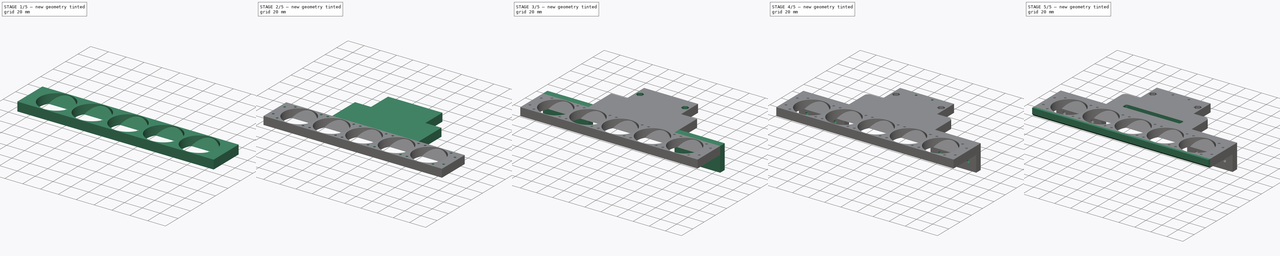
[diagram: build sequence overview — one tinted view per stage of 5, left to right]
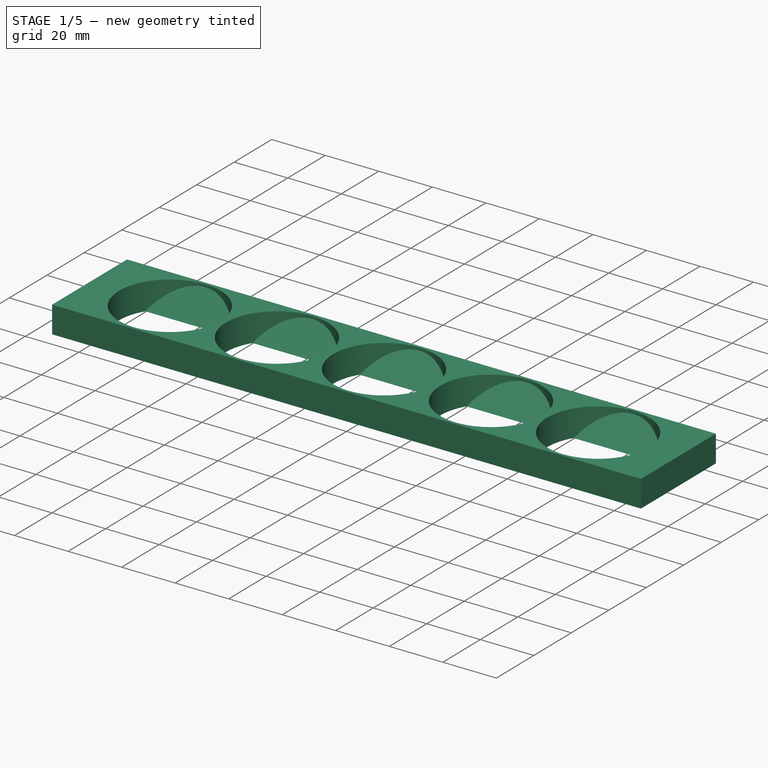
[diagram: stage 1 of 5 — iso view after this stage's code; geometry added in this stage tinted green]
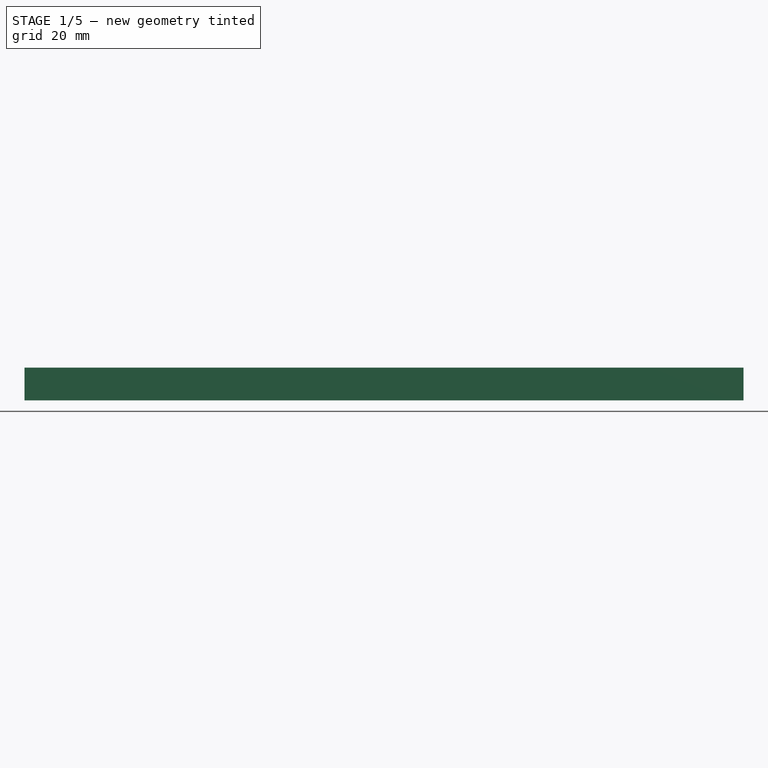
[diagram: stage 1 of 5 — front view after this stage's code; geometry added in this stage tinted green]
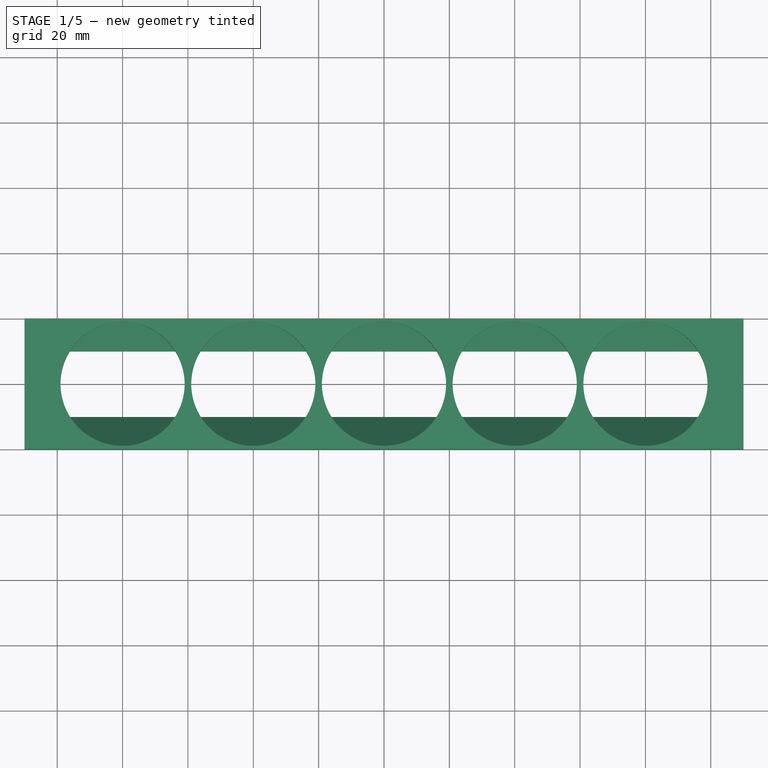
[diagram: stage 1 of 5 — top view after this stage's code; geometry added in this stage tinted green]
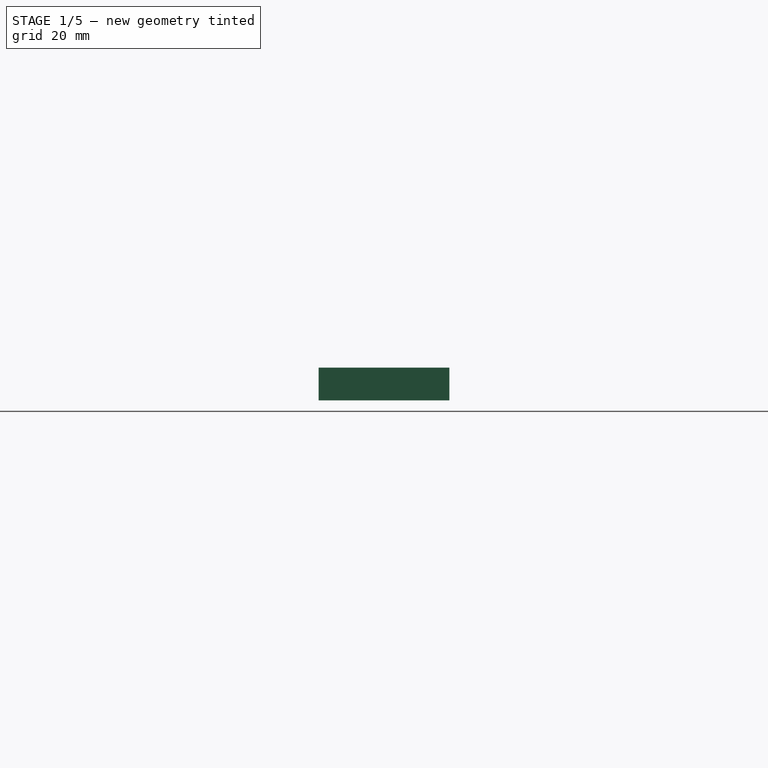
[diagram: stage 1 of 5 — right view after this stage's code; geometry added in this stage tinted green]
FCSTD DOCUMENT  (FreeCAD 0.19R19180 (Git))
Label: base
License: All rights reserved
LicenseURL: http://en.wikipedia.org/wiki/All_rights_reserved
objects: Sketcher::SketchObject×17, PartDesign::Pocket×10, PartDesign::Pad×7, PartDesign::Fillet×2, App::MeasureDistance×2, PartDesign::Chamfer×1, PartDesign::Body×1
note: 55 computed .brp shape members not serialized (recipe doc carries the construction recipe); baked Part::Feature solids carry a one-line shape summary decoded from their .brp

FEATURE [Sketcher::SketchObject] Sketch
  MapMode = 5
  Support = -> [XY_Plane]
  sketch-geometry (4):
    g0: LineSegment StartX=-110 StartY=20 StartZ=0 EndX=110 EndY=20 EndZ=0
    g1: LineSegment StartX=110 StartY=20 StartZ=0 EndX=110 EndY=-20 EndZ=0
    g2: LineSegment StartX=110 StartY=-20 StartZ=0 EndX=-110 EndY=-20 EndZ=0
    g3: LineSegment StartX=-110 StartY=-20 StartZ=0 EndX=-110 EndY=20 EndZ=0
  constraints (12):
    c: Coincident(g0,g1)
    c: Coincident(g1,g2)
    c: Coincident(g2,g3)
    c: Coincident(g3,g0)
    c: Horizontal(g0)
    c: Horizontal(g2)
    c: Vertical(g1)
    c: Vertical(g3)
    c: DistanceX(g0,g0) = 220
    c: DistanceY(g3,g3) = 40
    c: DistanceY(g-1,g0) = 20
    c: DistanceX(g0,g-1) = 110
FEATURE [PartDesign::Pad] Pad
  Length = 10
  Length2 = 100
  Profile = -> Sketch
  Type = 0
FEATURE [Sketcher::SketchObject] Sketch001
  ExternalGeometry = -> [Pad]
  MapMode = 5
  Placement = pos=(0,0,10) rot=(0,0,1;0rad)
  Support = -> [Pad]
  sketch-geometry (5):
    g0: Circle CenterX=-80 CenterY=0 CenterZ=0 NormalX=0 NormalY=0 NormalZ=1 AngleXU=0 Radius=19
    g1: Circle CenterX=-40 CenterY=0 CenterZ=0 NormalX=0 NormalY=0 NormalZ=1 AngleXU=0 Radius=19
    g2: Circle CenterX=0 CenterY=0 CenterZ=0 NormalX=0 NormalY=0 NormalZ=1 AngleXU=0 Radius=19
    g3: Circle CenterX=40 CenterY=0 CenterZ=0 NormalX=0 NormalY=0 NormalZ=1 AngleXU=0 Radius=19
    g4: Circle CenterX=80 CenterY=0 CenterZ=0 NormalX=0 NormalY=0 NormalZ=1 AngleXU=0 Radius=19
  constraints (14):
    c: PointOnObject(g0,g-1)
    c: Coincident(g2,g-1)
    c: PointOnObject(g4,g-1)
    c: Diameter(g4) = 38
    c: Equal(g4,g3)
    c: Equal(g4,g2)
    c: Equal(g4,g1)
    c: Equal(g4,g0)
    c: DistanceX(g-3,g0) = 30
    c: DistanceY(g1,g-1) = 0
    c: DistanceY(g-1,g3) = 0
    c: DistanceX(g0,g1) = 40
    c: DistanceX(g2,g3) = 40
    c: DistanceX(g3,g4) = 40
FEATURE [PartDesign::Pocket] Pocket
  BaseFeature = -> Pad
  Length = 10
  Length2 = 100
  Profile = -> Sketch001
  Type = 0
FEATURE [Sketcher::SketchObject] Sketch002
  ExternalGeometry = -> [Pocket]
  MapMode = 5
  Placement = pos=(110,0,0) rot=(0.57735,0.57735,0.57735;2.0944rad)
  Support = -> [Pocket]
  sketch-geometry (3):
    g0: LineSegment StartX=-10 StartY=0 StartZ=0 EndX=-20 EndY=0 EndZ=0
    g1: LineSegment StartX=-20 StartY=0 StartZ=0 EndX=-20 EndY=10 EndZ=0
    g2: LineSegment StartX=-10 StartY=0 StartZ=0 EndX=-20 EndY=10 EndZ=0
  constraints (7):
    c: Coincident(g0,g1)
    c: Horizontal(g0)
    c: Vertical(g1)
    c: Coincident(g0,g-4)
    c: DistanceY(g1,g-3) = 0
    c: Coincident(g2,g0)
    c: Coincident(g2,g1)
FEATURE [PartDesign::Pad] Pad001
  BaseFeature = -> Pocket
  Length = 220
  Length2 = 100
  Profile = -> Sketch002
  Reversed = true
  Type = 0
FEATURE [Sketcher::SketchObject] Sketch003
  ExternalGeometry = -> [Pad001]
  MapMode = 5
  Placement = pos=(110,0,0) rot=(0.57735,0.57735,0.57735;2.0944rad)
  Support = -> [Pad001]
  sketch-geometry (3):
    g0: LineSegment StartX=20 StartY=10 StartZ=0 EndX=10 EndY=0 EndZ=0
    g1: LineSegment StartX=10 StartY=0 StartZ=0 EndX=20 EndY=0 EndZ=0
    g2: LineSegment StartX=20 StartY=0 StartZ=0 EndX=20 EndY=10 EndZ=0
  constraints (8):
    c: Coincident(g0,g1)
    c: Horizontal(g1)
    c: Coincident(g1,g2)
    c: Coincident(g2,g0)
    c: Vertical(g2)
    c: Coincident(g-3,g0)
    c: DistanceY(g-4,g1) = 0
    c: DistanceX(g1,g1) = 10
FEATURE [PartDesign::Pad] Pad002
  BaseFeature = -> Pad001
  Length = 220
  Length2 = 100
  Profile = -> Sketch003
  Reversed = true
  Type = 0
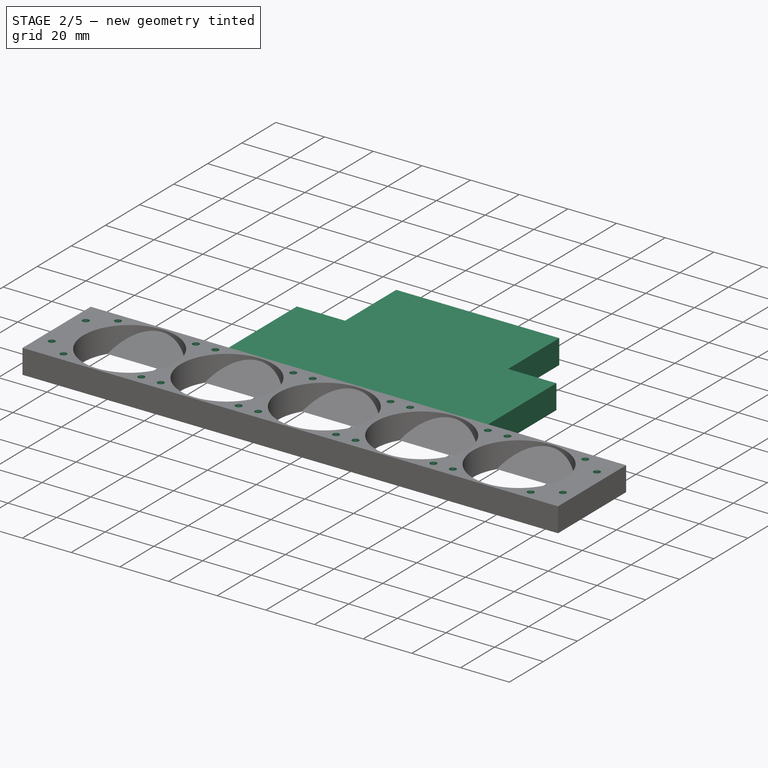
[diagram: stage 2 of 5 — iso view after this stage's code; geometry added in this stage tinted green]
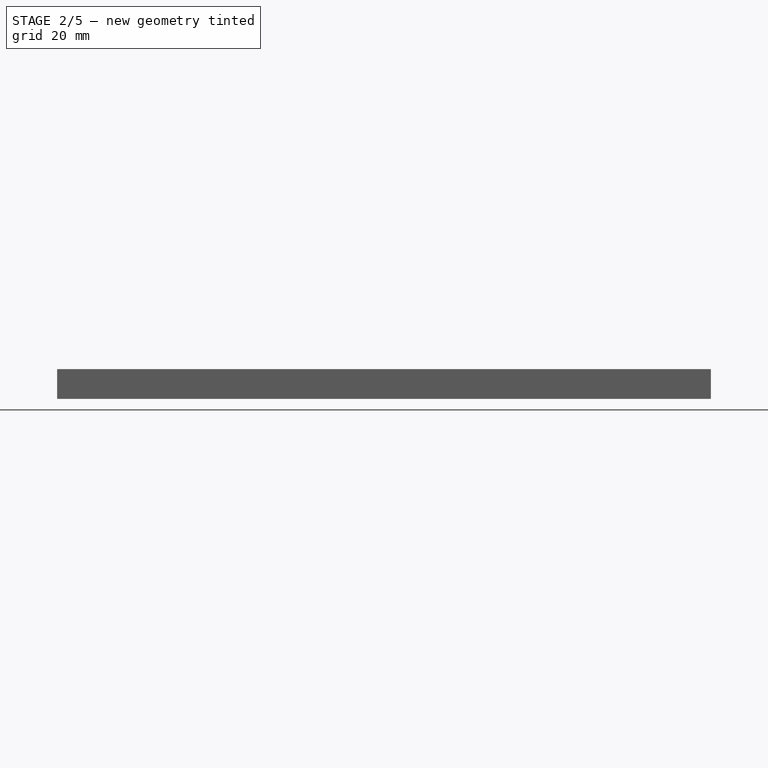
[diagram: stage 2 of 5 — front view after this stage's code; geometry added in this stage tinted green]
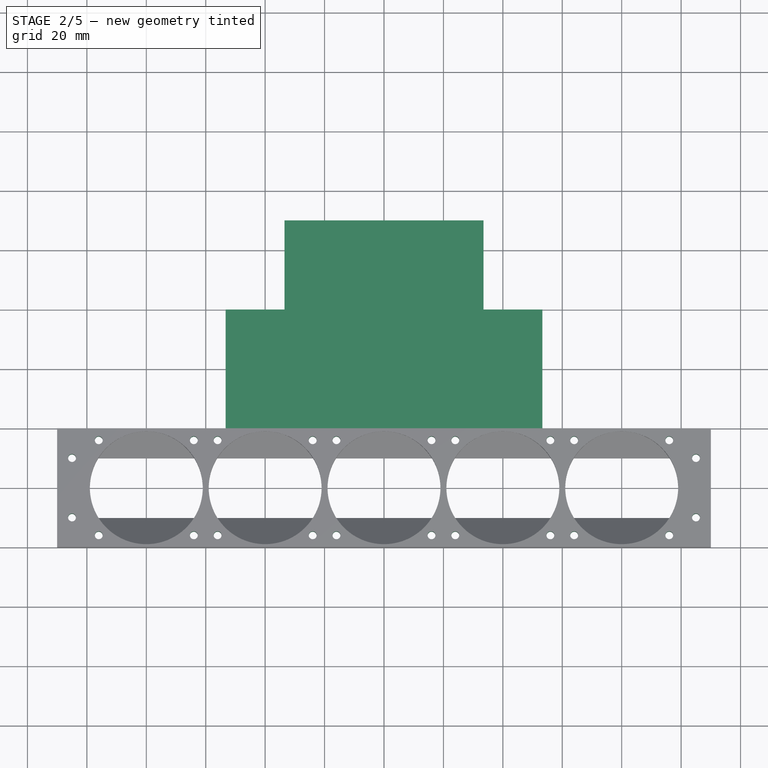
[diagram: stage 2 of 5 — top view after this stage's code; geometry added in this stage tinted green]
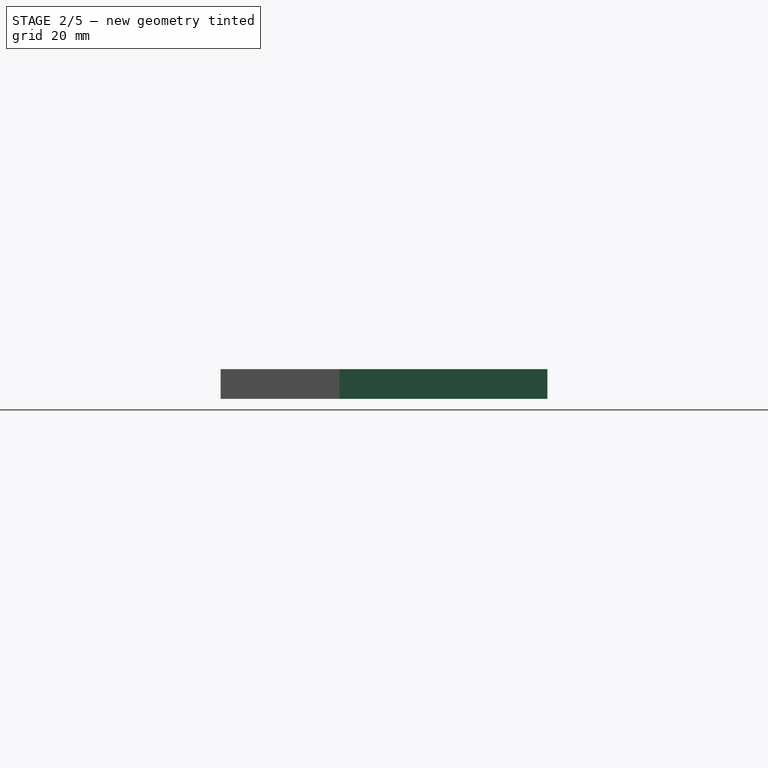
[diagram: stage 2 of 5 — right view after this stage's code; geometry added in this stage tinted green]
FEATURE [Sketcher::SketchObject] Sketch004
  ExternalGeometry = -> [Pad002]
  MapMode = 5
  Placement = pos=(0,0,10) rot=(0,0,1;0rad)
  Support = -> [Pad002]
  sketch-geometry (20):
    g0: Circle CenterX=-96 CenterY=16 CenterZ=0 NormalX=0 NormalY=0 NormalZ=1 AngleXU=0 Radius=1.325
    g1: Circle CenterX=-96 CenterY=-16 CenterZ=0 NormalX=0 NormalY=0 NormalZ=1 AngleXU=0 Radius=1.325
    g2: Circle CenterX=-64 CenterY=-16 CenterZ=0 NormalX=0 NormalY=0 NormalZ=1 AngleXU=0 Radius=1.325
    g3: Circle CenterX=-64 CenterY=16 CenterZ=0 NormalX=0 NormalY=0 NormalZ=1 AngleXU=0 Radius=1.325
    g4: Circle CenterX=-56 CenterY=16 CenterZ=0 NormalX=0 NormalY=0 NormalZ=1 AngleXU=0 Radius=1.325
    g5: Circle CenterX=-56 CenterY=-16 CenterZ=0 NormalX=0 NormalY=0 NormalZ=1 AngleXU=0 Radius=1.325
    g6: Circle CenterX=-24 CenterY=-16 CenterZ=0 NormalX=0 NormalY=0 NormalZ=1 AngleXU=0 Radius=1.325
    g7: Circle CenterX=-24 CenterY=16 CenterZ=0 NormalX=0 NormalY=0 NormalZ=1 AngleXU=0 Radius=1.325
    g8: Circle CenterX=-16 CenterY=16 CenterZ=0 NormalX=0 NormalY=0 NormalZ=1 AngleXU=0 Radius=1.325
    g9: Circle CenterX=-16 CenterY=-16 CenterZ=0 NormalX=0 NormalY=0 NormalZ=1 AngleXU=0 Radius=1.325
    g10: Circle CenterX=16 CenterY=-16 CenterZ=0 NormalX=0 NormalY=0 NormalZ=1 AngleXU=0 Radius=1.325
    g11: Circle CenterX=16 CenterY=16 CenterZ=0 NormalX=0 NormalY=0 NormalZ=1 AngleXU=0 Radius=1.325
    g12: Circle CenterX=24 CenterY=16 CenterZ=0 NormalX=0 NormalY=0 NormalZ=1 AngleXU=0 Radius=1.325
    g13: Circle CenterX=24 CenterY=-16 CenterZ=0 NormalX=0 NormalY=0 NormalZ=1 AngleXU=0 Radius=1.325
    g14: Circle CenterX=56 CenterY=-16 CenterZ=0 NormalX=0 NormalY=0 NormalZ=1 AngleXU=0 Radius=1.325
    g15: Circle CenterX=56 CenterY=16 CenterZ=0 NormalX=0 NormalY=0 NormalZ=1 AngleXU=0 Radius=1.325
    g16: Circle CenterX=64 CenterY=16 CenterZ=0 NormalX=0 NormalY=0 NormalZ=1 AngleXU=0 Radius=1.325
    g17: Circle CenterX=64 CenterY=-16 CenterZ=0 NormalX=0 NormalY=0 NormalZ=1 AngleXU=0 Radius=1.325
    g18: Circle CenterX=96 CenterY=-16 CenterZ=0 NormalX=0 NormalY=0 NormalZ=1 AngleXU=0 Radius=1.325
    g19: Circle CenterX=96 CenterY=16 CenterZ=0 NormalX=0 NormalY=0 NormalZ=1 AngleXU=0 Radius=1.325
  constraints (47):
    c: Diameter(g0) = 2.65
    c: Equal(g0, g1-g5) x5
    c: Equal(g0,g7)
    c: Equal(g0,g6)
    c: Equal(g0,g9)
    c: Equal(g0,g8)
    c: Equal(g0, g10-g19) x10
    c: DistanceY(g0,g-4) = 4
    c: DistanceY(g3,g-4) = 4
    c: DistanceY(g4,g-4) = 4
    c: DistanceY(g7,g-4) = 4
    c: DistanceY(g8,g-4) = 4
    c: DistanceY(g11,g-4) = 4
    c: DistanceY(g12,g-4) = 4
    c: DistanceY(g15,g-4) = 4
    c: DistanceY(g16,g-4) = 4
    c: DistanceY(g19,g-4) = 4
    c: DistanceY(g-3,g1) = 4
    c: DistanceY(g-3,g2) = 4
    c: DistanceY(g-3,g5) = 4
    c: DistanceY(g-3,g6) = 4
    c: DistanceY(g-3,g9) = 4
    c: DistanceY(g-3,g10) = 4
    c: DistanceY(g-3,g13) = 4
    c: DistanceY(g-3,g14) = 4
    c: DistanceY(g-3,g17) = 4
    c: DistanceY(g-3,g18) = 4
    c: DistanceX(g-3,g1) = 14
    c: DistanceX(g-4,g0) = 14
    c: DistanceX(g0,g3) = 32
    c: DistanceX(g1,g2) = 32
    c: DistanceX(g2,g5) = 8
    c: DistanceX(g3,g4) = 8
    c: DistanceX(g4,g7) = 32
    c: DistanceX(g5,g6) = 32
    c: DistanceX(g6,g9) = 8
    c: DistanceX(g7,g8) = 8
    c: DistanceX(g8,g11) = 32
    c: DistanceX(g9,g10) = 32
    c: DistanceX(g10,g13) = 8
    c: DistanceX(g11,g12) = 8
    c: DistanceX(g12,g15) = 32
    c: DistanceX(g13,g14) = 32
    c: DistanceX(g14,g17) = 8
    c: DistanceX(g15,g16) = 8
    c: DistanceX(g16,g19) = 32
    c: DistanceX(g17,g18) = 32
FEATURE [PartDesign::Pocket] Pocket001
  BaseFeature = -> Pad002
  Length = 10
  Length2 = 100
  Profile = -> Sketch004
  Type = 0
FEATURE [Sketcher::SketchObject] Sketch005
  ExternalGeometry = -> [Pocket001]
  MapMode = 5
  Placement = pos=(0,0,10) rot=(0,0,1;0rad)
  Support = -> [Pocket001]
  sketch-geometry (4):
    g0: Circle CenterX=-105 CenterY=10 CenterZ=0 NormalX=0 NormalY=0 NormalZ=1 AngleXU=0 Radius=1.325
    g1: Circle CenterX=-105 CenterY=-10 CenterZ=0 NormalX=0 NormalY=0 NormalZ=1 AngleXU=0 Radius=1.325
    g2: Circle CenterX=105 CenterY=10 CenterZ=0 NormalX=0 NormalY=0 NormalZ=1 AngleXU=0 Radius=1.325
    g3: Circle CenterX=105 CenterY=-10 CenterZ=0 NormalX=0 NormalY=0 NormalZ=1 AngleXU=0 Radius=1.325
  constraints (12):
    c: Diameter(g2) = 2.65
    c: Equal(g2,g3)
    c: Equal(g2,g1)
    c: Equal(g2,g0)
    c: DistanceY(g0,g-4) = 10
    c: DistanceX(g-4,g0) = 5
    c: DistanceY(g1,g0) = 20
    c: DistanceX(g-4,g1) = 5
    c: DistanceY(g2,g-5) = 10
    c: DistanceX(g2,g-5) = 5
    c: DistanceY(g3,g2) = 20
    c: DistanceX(g3,g-5) = 5
FEATURE [PartDesign::Pocket] Pocket002
  BaseFeature = -> Pocket001
  Length = 10
  Length2 = 100
  Profile = -> Sketch005
  Type = 0
FEATURE [Sketcher::SketchObject] Sketch006
  ExternalGeometry = -> [Pocket002]
  MapMode = 5
  Placement = pos=(0,20,0) rot=(0,0.707107,0.707107;3.14159rad)
  Support = -> [Pocket002]
  sketch-geometry (4):
    g0: LineSegment StartX=-53.3 StartY=10 StartZ=0 EndX=53.3 EndY=10 EndZ=0
    g1: LineSegment StartX=53.3 StartY=10 StartZ=0 EndX=53.3 EndY=0 EndZ=0
    g2: LineSegment StartX=53.3 StartY=0 StartZ=0 EndX=-53.3 EndY=0 EndZ=0
    g3: LineSegment StartX=-53.3 StartY=0 StartZ=0 EndX=-53.3 EndY=10 EndZ=0
  constraints (12):
    c: Coincident(g0,g1)
    c: Coincident(g1,g2)
    c: Coincident(g2,g3)
    c: Coincident(g3,g0)
    c: Horizontal(g0)
    c: Horizontal(g2)
    c: Vertical(g1)
    c: Vertical(g3)
    c: DistanceY(g-1,g1) = 0
    c: DistanceY(g0,g-3) = 0
    c: DistanceX(g0,g0) = 106.6
    c: DistanceX(g0,g-1) = 53.3
FEATURE [PartDesign::Pad] Pad003
  BaseFeature = -> Pocket002
  Length = 70
  Length2 = 100
  Profile = -> Sketch006
  Type = 0
FEATURE [Sketcher::SketchObject] Sketch007
  MapMode = 5
  Placement = pos=(0,90,-3.2e-14) rot=(0,0.707107,0.707107;3.14159rad)
  sketch-geometry (8):
    g0: LineSegment StartX=-53.3 StartY=10 StartZ=0 EndX=-33.5 EndY=10 EndZ=0
    g1: LineSegment StartX=-33.5 StartY=10 StartZ=0 EndX=-33.5 EndY=1.6e-14 EndZ=0
    g2: LineSegment StartX=-33.5 StartY=1.6e-14 StartZ=0 EndX=-53.3 EndY=1.6e-14 EndZ=0
    g3: LineSegment StartX=-53.3 StartY=1.6e-14 StartZ=0 EndX=-53.3 EndY=10 EndZ=0
    g4: LineSegment StartX=33.5 StartY=10 StartZ=0 EndX=53.3 EndY=10 EndZ=0
    g5: LineSegment StartX=53.3 StartY=10 StartZ=0 EndX=53.3 EndY=0 EndZ=0
    g6: LineSegment StartX=53.3 StartY=0 StartZ=0 EndX=33.5 EndY=0 EndZ=0
    g7: LineSegment StartX=33.5 StartY=0 StartZ=0 EndX=33.5 EndY=10 EndZ=0
  constraints (18):
    c: Coincident(g0,g1)
    c: Coincident(g1,g2)
    c: Coincident(g2,g3)
    c: Coincident(g3,g0)
    c: Horizontal(g0)
    c: Horizontal(g2)
    c: Vertical(g1)
    c: Vertical(g3)
    c: Coincident(g4,g5)
    c: Coincident(g5,g6)
    c: Coincident(g6,g7)
    c: Coincident(g7,g4)
    c: Horizontal(g4)
    c: Horizontal(g6)
    c: Vertical(g5)
    c: Vertical(g7)
    c: DistanceX(g1,g6) = 67
    c: DistanceX(g1,g-1) = 33.5
FEATURE [PartDesign::Pocket] Pocket003
  BaseFeature = -> Pad003
  Length = 30
  Length2 = 100
  Profile = -> Sketch007
  Type = 0
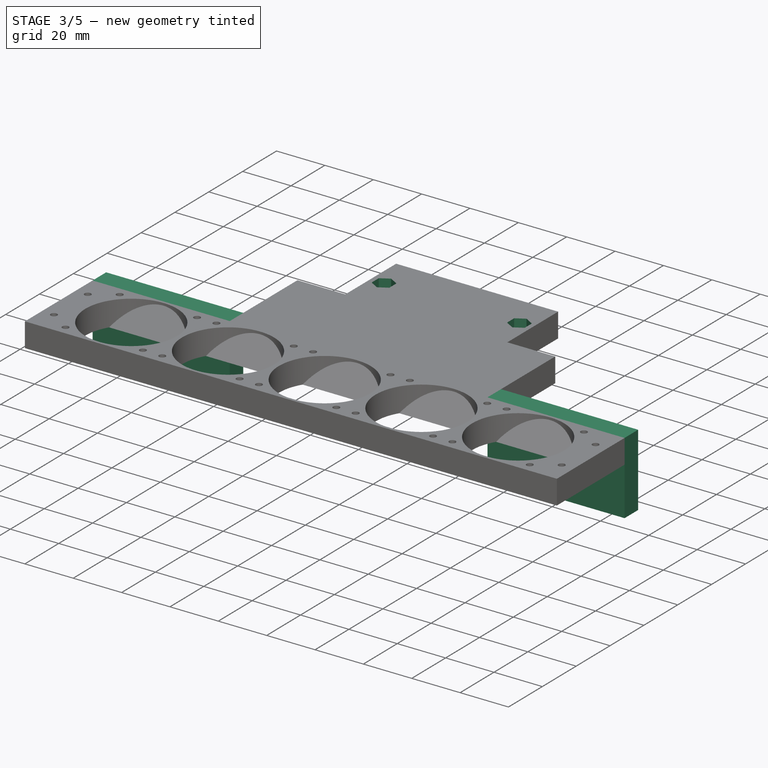
[diagram: stage 3 of 5 — iso view after this stage's code; geometry added in this stage tinted green]
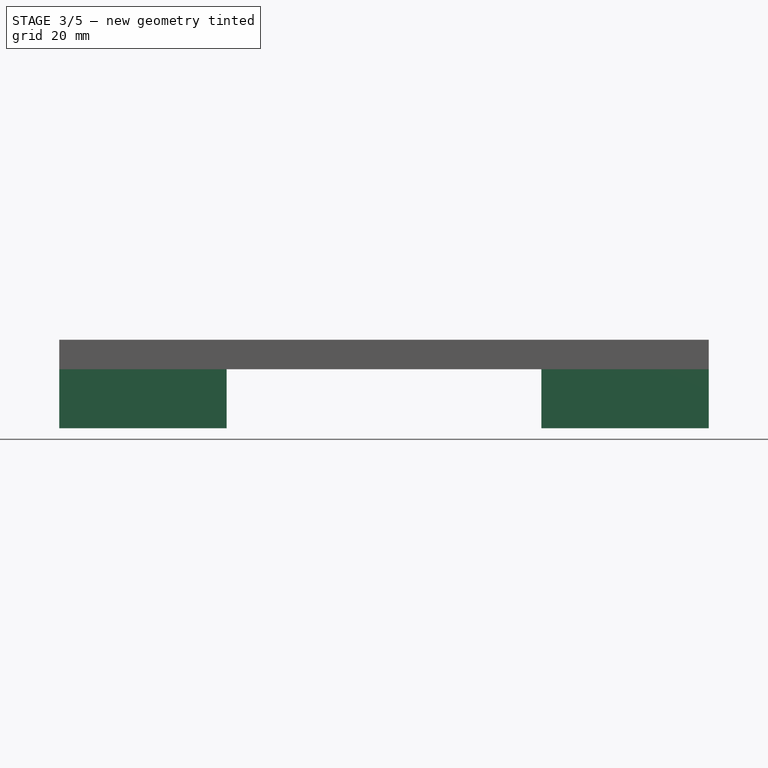
[diagram: stage 3 of 5 — front view after this stage's code; geometry added in this stage tinted green]
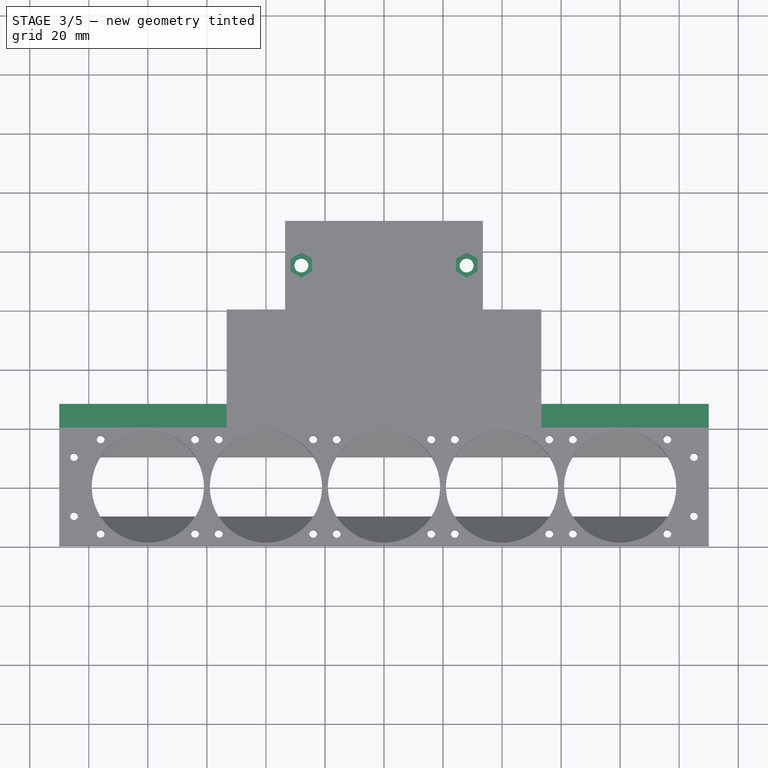
[diagram: stage 3 of 5 — top view after this stage's code; geometry added in this stage tinted green]
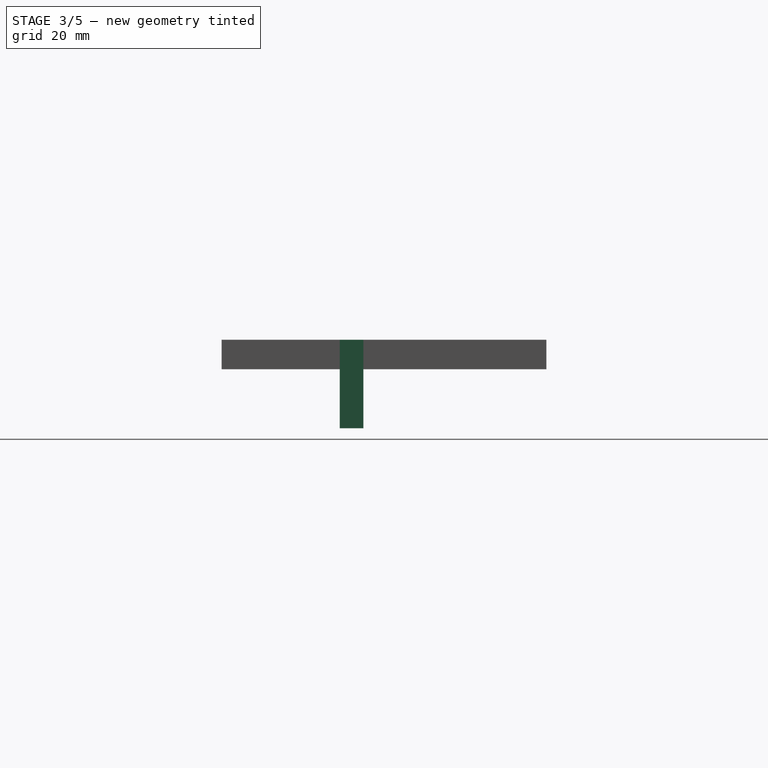
[diagram: stage 3 of 5 — right view after this stage's code; geometry added in this stage tinted green]
FEATURE [Sketcher::SketchObject] Sketch008
  ExternalGeometry = -> [Pocket003]
  MapMode = 5
  Placement = pos=(0,20,0) rot=(0,0.707107,0.707107;3.14159rad)
  Support = -> [Pocket003]
  sketch-geometry (8):
    g0: LineSegment StartX=-110 StartY=10 StartZ=0 EndX=-53.3 EndY=10 EndZ=0
    g1: LineSegment StartX=-53.3 StartY=10 StartZ=0 EndX=-53.3 EndY=0 EndZ=0
    g2: LineSegment StartX=-53.3 StartY=0 StartZ=0 EndX=-110 EndY=0 EndZ=0
    g3: LineSegment StartX=-110 StartY=0 StartZ=0 EndX=-110 EndY=10 EndZ=0
    g4: LineSegment StartX=53.3 StartY=10 StartZ=0 EndX=110 EndY=10 EndZ=0
    g5: LineSegment StartX=110 StartY=10 StartZ=0 EndX=110 EndY=0 EndZ=0
    g6: LineSegment StartX=110 StartY=0 StartZ=0 EndX=53.3 EndY=0 EndZ=0
    g7: LineSegment StartX=53.3 StartY=0 StartZ=0 EndX=53.3 EndY=10 EndZ=0
  constraints (22):
    c: Coincident(g0,g1)
    c: Coincident(g1,g2)
    c: Coincident(g2,g3)
    c: Coincident(g3,g0)
    c: Horizontal(g0)
    c: Horizontal(g2)
    c: Vertical(g1)
    c: Vertical(g3)
    c: Coincident(g4,g5)
    c: Coincident(g5,g6)
    c: Coincident(g6,g7)
    c: Coincident(g7,g4)
    c: Horizontal(g4)
    c: Horizontal(g6)
    c: Vertical(g5)
    c: Vertical(g7)
    c: Coincident(g0,g-3)
    c: DistanceY(g-4,g2) = 0
    c: DistanceX(g0,g-5) = 0
    c: Coincident(g4,g-7)
    c: DistanceY(g-8,g5) = 0
    c: DistanceX(g-9,g6) = 0
FEATURE [PartDesign::Pad] Pad004
  BaseFeature = -> Pocket003
  Length = 8
  Length2 = 100
  Profile = -> Sketch008
  Type = 0
FEATURE [Sketcher::SketchObject] Sketch009
  ExternalGeometry = -> [Pad004]
  MapMode = 5
  Placement = pos=(0,0,4.4e-15) rot=(1,0,0;3.14159rad)
  Support = -> [Pad004]
  sketch-geometry (8):
    g0: LineSegment StartX=-110 StartY=-20 StartZ=0 EndX=-53.3 EndY=-20 EndZ=0
    g1: LineSegment StartX=-53.3 StartY=-20 StartZ=0 EndX=-53.3 EndY=-28 EndZ=0
    g2: LineSegment StartX=-53.3 StartY=-28 StartZ=0 EndX=-110 EndY=-28 EndZ=0
    g3: LineSegment StartX=-110 StartY=-28 StartZ=0 EndX=-110 EndY=-20 EndZ=0
    g4: LineSegment StartX=53.3 StartY=-20 StartZ=0 EndX=110 EndY=-20 EndZ=0
    g5: LineSegment StartX=110 StartY=-20 StartZ=0 EndX=110 EndY=-28 EndZ=0
    g6: LineSegment StartX=110 StartY=-28 StartZ=0 EndX=53.3 EndY=-28 EndZ=0
    g7: LineSegment StartX=53.3 StartY=-28 StartZ=0 EndX=53.3 EndY=-20 EndZ=0
  constraints (22):
    c: Coincident(g0,g1)
    c: Coincident(g1,g2)
    c: Coincident(g2,g3)
    c: Coincident(g3,g0)
    c: Horizontal(g0)
    c: Horizontal(g2)
    c: Vertical(g1)
    c: Vertical(g3)
    c: Coincident(g4,g5)
    c: Coincident(g5,g6)
    c: Coincident(g6,g7)
    c: Coincident(g7,g4)
    c: Horizontal(g4)
    c: Horizontal(g6)
    c: Vertical(g5)
    c: Vertical(g7)
    c: Coincident(g2,g-6)
    c: Coincident(g5,g-3)
    c: DistanceX(g1,g-5) = 0
    c: DistanceX(g-4,g6) = 0
    c: Equal(g1,g7)
    c: DistanceY(g1,g1) = 8
FEATURE [PartDesign::Pad] Pad005
  BaseFeature = -> Pad004
  Length = 20
  Length2 = 100
  Profile = -> Sketch009
  Type = 0
FEATURE [Sketcher::SketchObject] Sketch010
  ExternalGeometry = -> [Pad005]
  MapMode = 5
  Placement = pos=(0,0,4.4e-15) rot=(1,0,0;3.14159rad)
  Support = -> [Pad005]
  sketch-geometry (2):
    g0: Circle CenterX=-28 CenterY=-75 CenterZ=0 NormalX=0 NormalY=0 NormalZ=1 AngleXU=0 Radius=2.375
    g1: Circle CenterX=28 CenterY=-75 CenterZ=0 NormalX=0 NormalY=0 NormalZ=1 AngleXU=0 Radius=2.375
  constraints (6):
    c: Diameter(g1) = 4.75
    c: Equal(g1,g0)
    c: DistanceY(g-3,g1) = 15
    c: Horizontal(g1,g0)
    c: DistanceX(g0,g1) = 56
    c: DistanceX(g-1,g1) = 28
FEATURE [PartDesign::Pocket] Pocket004
  BaseFeature = -> Pad005
  Length = 10
  Length2 = 100
  Profile = -> Sketch010
  Type = 0
FEATURE [Sketcher::SketchObject] Sketch011
  ExternalGeometry = -> [Pocket004]
  MapMode = 5
  Placement = pos=(0,2.2e-15,10) rot=(0,0,1;0rad)
  Support = -> [Pocket004]
  sketch-geometry (14):
    g0: LineSegment StartX=-24.35 StartY=72.8927 StartZ=0 EndX=-24.35 EndY=77.1073 EndZ=0
    g1: LineSegment StartX=-24.35 StartY=77.1073 StartZ=0 EndX=-28 EndY=79.2147 EndZ=0
    g2: LineSegment StartX=-28 StartY=79.2147 StartZ=0 EndX=-31.65 EndY=77.1073 EndZ=0
    g3: LineSegment StartX=-31.65 StartY=77.1073 StartZ=0 EndX=-31.65 EndY=72.8927 EndZ=0
    g4: LineSegment StartX=-31.65 StartY=72.8927 StartZ=0 EndX=-28 EndY=70.7853 EndZ=0
    g5: LineSegment StartX=-28 StartY=70.7853 StartZ=0 EndX=-24.35 EndY=72.8927 EndZ=0
    g6: Circle [constr] CenterX=-28 CenterY=75 CenterZ=0 NormalX=0 NormalY=0 NormalZ=1 AngleXU=0 Radius=4.21466
    g7: LineSegment StartX=31.65 StartY=77.1073 StartZ=0 EndX=28 EndY=79.2147 EndZ=0
    g8: LineSegment StartX=28 StartY=79.2147 StartZ=0 EndX=24.35 EndY=77.1073 EndZ=0
    g9: LineSegment StartX=24.35 StartY=77.1073 StartZ=0 EndX=24.35 EndY=72.8927 EndZ=0
    g10: LineSegment StartX=24.35 StartY=72.8927 StartZ=0 EndX=28 EndY=70.7853 EndZ=0
    g11: LineSegment StartX=28 StartY=70.7853 StartZ=0 EndX=31.65 EndY=72.8927 EndZ=0
    g12: LineSegment StartX=31.65 StartY=72.8927 StartZ=0 EndX=31.65 EndY=77.1073 EndZ=0
    g13: Circle [constr] CenterX=28 CenterY=75 CenterZ=0 NormalX=0 NormalY=0 NormalZ=1 AngleXU=0 Radius=4.21466
  constraints (34):
    c: Coincident(g0,g1)
    c: Coincident(g1,g2)
    c: Coincident(g2,g3)
    c: Coincident(g3,g4)
    c: Coincident(g4,g5)
    c: Coincident(g5,g0)
    c: Equal(g0, g1-g5) x5
    c: PointOnObject(g0,g6)
    c: PointOnObject(g1,g6)
    c: PointOnObject(g2,g6)
    c: PointOnObject(g3,g6)
    c: PointOnObject(g4,g6)
    c: PointOnObject(g5,g6)
    c: Coincident(g7,g8)
    c: Coincident(g8,g9)
    c: Coincident(g9,g10)
    c: Coincident(g10,g11)
    c: Coincident(g11,g12)
    c: Coincident(g12,g7)
    c: Equal(g7, g8-g12) x5
    c: PointOnObject(g7,g13)
    c: PointOnObject(g8,g13)
    c: PointOnObject(g9,g13)
    c: PointOnObject(g10,g13)
    c: PointOnObject(g11,g13)
    c: PointOnObject(g12,g13)
    c: Horizontal(g8,g7)
    c: Horizontal(g2,g0)
    c: DistanceX(g2,g0) = 7.3
    c: DistanceX(g8,g7) = 7.3
    c: DistanceX(g6,g13) = 56
    c: DistanceX(g6,g-1) = 28
    c: DistanceY(g6,g-3) = 15
    c: Horizontal(g6,g13)
FEATURE [PartDesign::Pocket] Pocket005
  BaseFeature = -> Pocket004
  Length = 4
  Length2 = 100
  Profile = -> Sketch011
  Type = 0
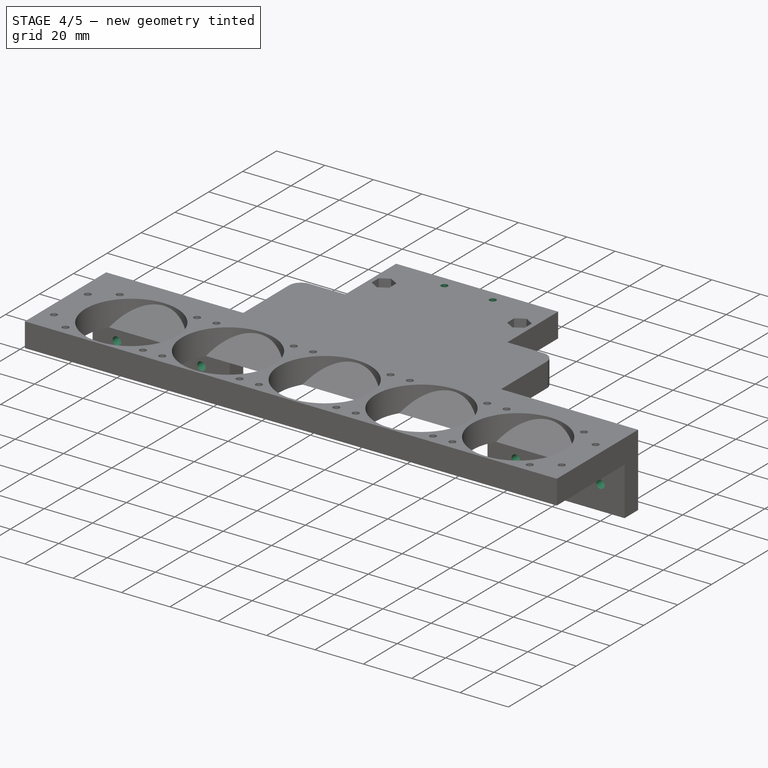
[diagram: stage 4 of 5 — iso view after this stage's code; geometry added in this stage tinted green]
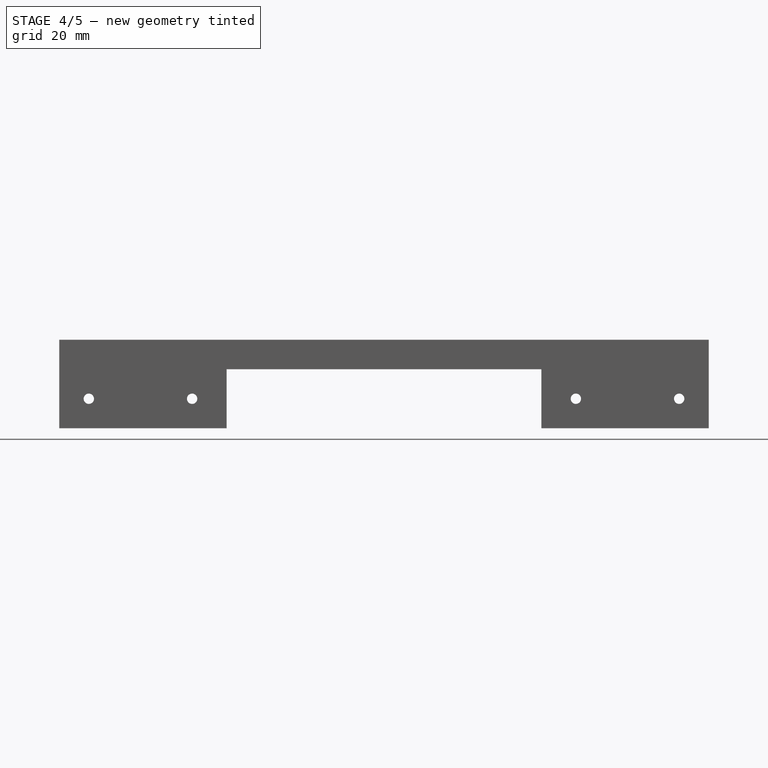
[diagram: stage 4 of 5 — front view after this stage's code; geometry added in this stage tinted green]
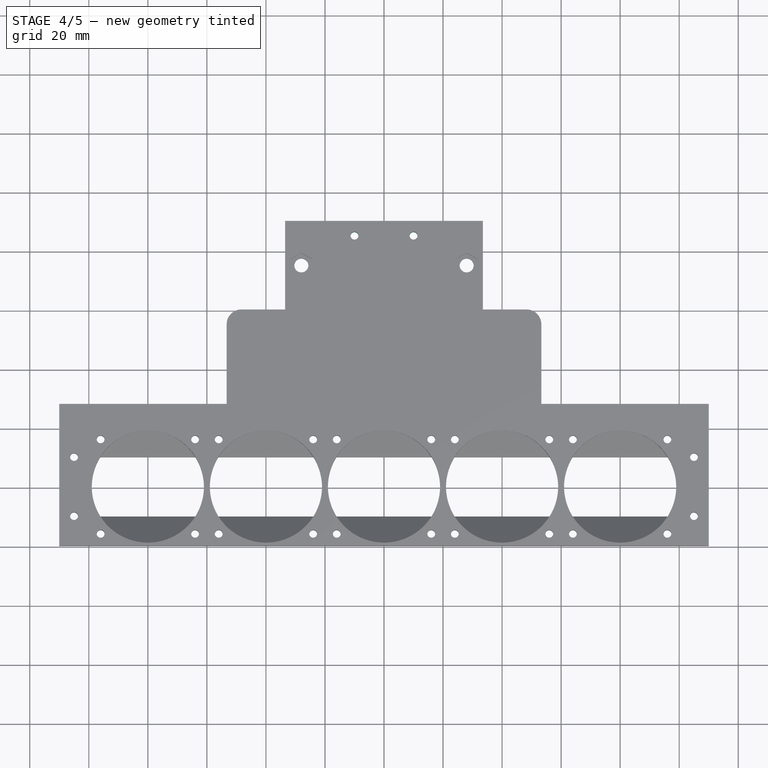
[diagram: stage 4 of 5 — top view after this stage's code; geometry added in this stage tinted green]
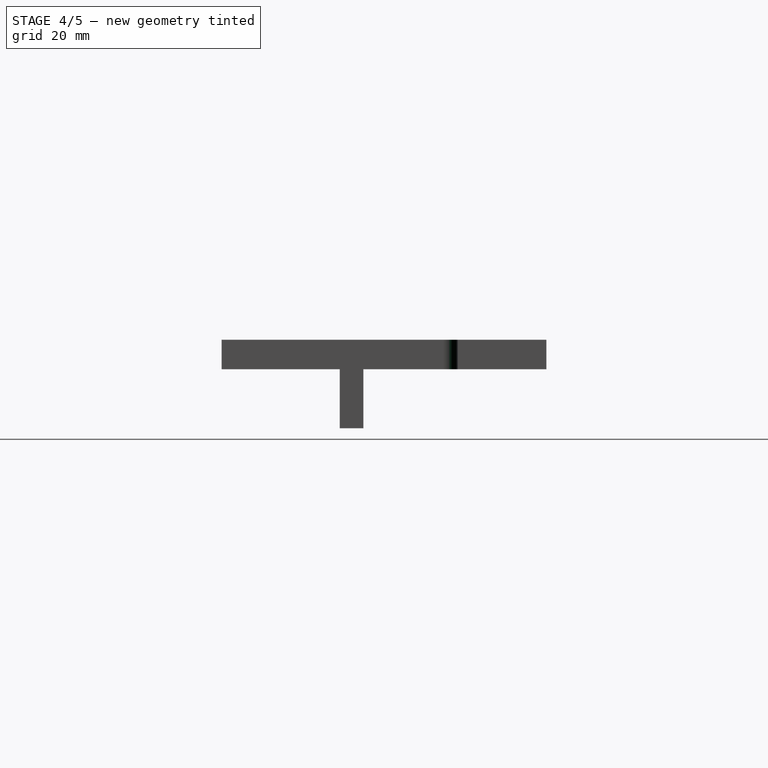
[diagram: stage 4 of 5 — right view after this stage's code; geometry added in this stage tinted green]
FEATURE [PartDesign::Fillet] Fillet
  Base = -> Pocket005 [Edge186,Edge182]
  BaseFeature = -> Pocket005
  Radius = 5
FEATURE [Sketcher::SketchObject] Sketch012
  ExternalGeometry = -> [Fillet]
  MapMode = 5
  Placement = pos=(0,28,-6.2e-15) rot=(0,0.707107,0.707107;3.14159rad)
  Support = -> [Fillet]
  sketch-geometry (4):
    g0: Circle CenterX=-100 CenterY=-10 CenterZ=0 NormalX=0 NormalY=0 NormalZ=1 AngleXU=0 Radius=1.75
    g1: Circle CenterX=-65 CenterY=-10 CenterZ=0 NormalX=0 NormalY=0 NormalZ=1 AngleXU=0 Radius=1.75
    g2: Circle CenterX=65 CenterY=-10 CenterZ=0 NormalX=0 NormalY=0 NormalZ=1 AngleXU=0 Radius=1.75
    g3: Circle CenterX=100 CenterY=-10 CenterZ=0 NormalX=0 NormalY=0 NormalZ=1 AngleXU=0 Radius=1.75
  constraints (12):
    c: Diameter(g1) = 3.5
    c: Equal(g1,g0)
    c: Equal(g1,g2)
    c: Equal(g1,g3)
    c: Horizontal(g0,g1)
    c: Horizontal(g1,g2)
    c: Horizontal(g2,g3)
    c: DistanceY(g-3,g1) = 10
    c: DistanceX(g-3,g0) = 10
    c: DistanceX(g0,g1) = 35
    c: DistanceX(g3,g-4) = 10
    c: DistanceX(g2,g3) = 35
FEATURE [PartDesign::Pocket] Pocket006
  BaseFeature = -> Fillet
  Length = 8
  Length2 = 100
  Profile = -> Sketch012
  Type = 0
FEATURE [Sketcher::SketchObject] Sketch013
  ExternalGeometry = -> [Pocket006]
  MapMode = 5
  Placement = pos=(0,28,-6.2e-15) rot=(0,0.707107,0.707107;3.14159rad)
  Support = -> [Pocket006]
  sketch-geometry (4):
    g0: Circle CenterX=-100 CenterY=-10 CenterZ=0 NormalX=0 NormalY=0 NormalZ=1 AngleXU=0 Radius=2.875
    g1: Circle CenterX=-65 CenterY=-10 CenterZ=0 NormalX=0 NormalY=0 NormalZ=1 AngleXU=0 Radius=2.875
    g2: Circle CenterX=65 CenterY=-10 CenterZ=0 NormalX=0 NormalY=0 NormalZ=1 AngleXU=0 Radius=2.875
    g3: Circle CenterX=100 CenterY=-10 CenterZ=0 NormalX=0 NormalY=0 NormalZ=1 AngleXU=0 Radius=2.875
  constraints (12):
    c: Diameter(g3) = 5.75
    c: Equal(g3,g2)
    c: Equal(g3,g1)
    c: Equal(g3,g0)
    c: Horizontal(g0,g1)
    c: Horizontal(g1,g2)
    c: Horizontal(g2,g3)
    c: DistanceY(g-5,g0) = 10
    c: DistanceX(g-5,g0) = 10
    c: DistanceX(g0,g1) = 35
    c: DistanceX(g3,g-6) = 10
    c: DistanceX(g2,g3) = 35
FEATURE [PartDesign::Pocket] Pocket007
  BaseFeature = -> Pocket006
  Length = 4
  Length2 = 100
  Profile = -> Sketch013
  Type = 0
FEATURE [Sketcher::SketchObject] Sketch014
  ExternalGeometry = -> [Pocket007]
  MapMode = 5
  Placement = pos=(0,2.2e-15,10) rot=(0,0,1;0rad)
  Support = -> [Pocket007]
  sketch-geometry (2):
    g0: Circle CenterX=-10 CenterY=85 CenterZ=0 NormalX=0 NormalY=0 NormalZ=1 AngleXU=0 Radius=1.325
    g1: Circle CenterX=10 CenterY=85 CenterZ=0 NormalX=0 NormalY=0 NormalZ=1 AngleXU=0 Radius=1.325
  constraints (6):
    c: Diameter(g0) = 2.65
    c: Equal(g0,g1)
    c: Horizontal(g1,g0)
    c: DistanceX(g0,g1) = 20
    c: DistanceX(g0,g-1) = 10
    c: DistanceY(g0,g-3) = 5
FEATURE [PartDesign::Pocket] Pocket008
  BaseFeature = -> Pocket007
  Length = 10
  Length2 = 100
  Profile = -> Sketch014
  Type = 0
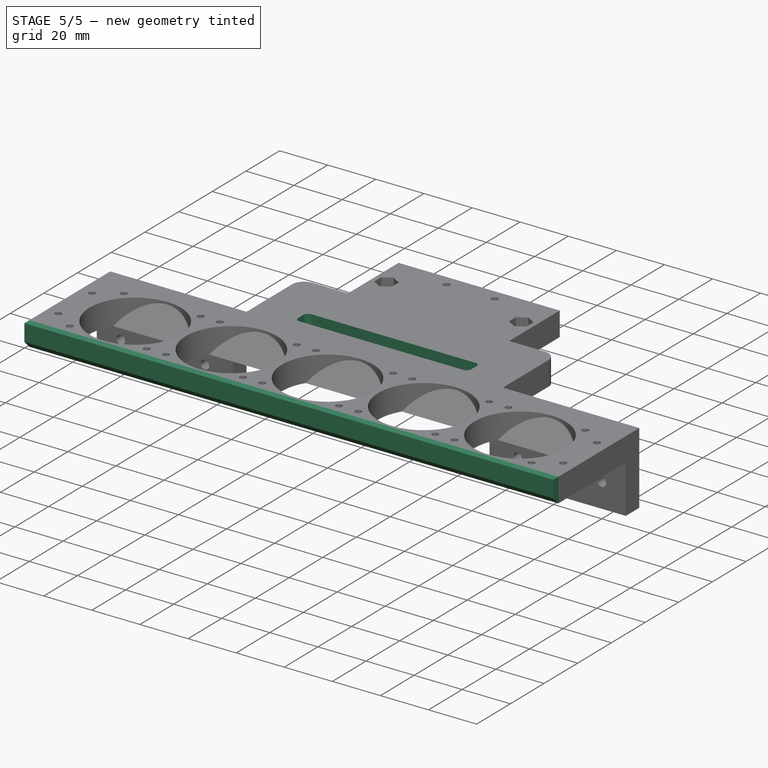
[diagram: stage 5 of 5 — iso view after this stage's code; geometry added in this stage tinted green]
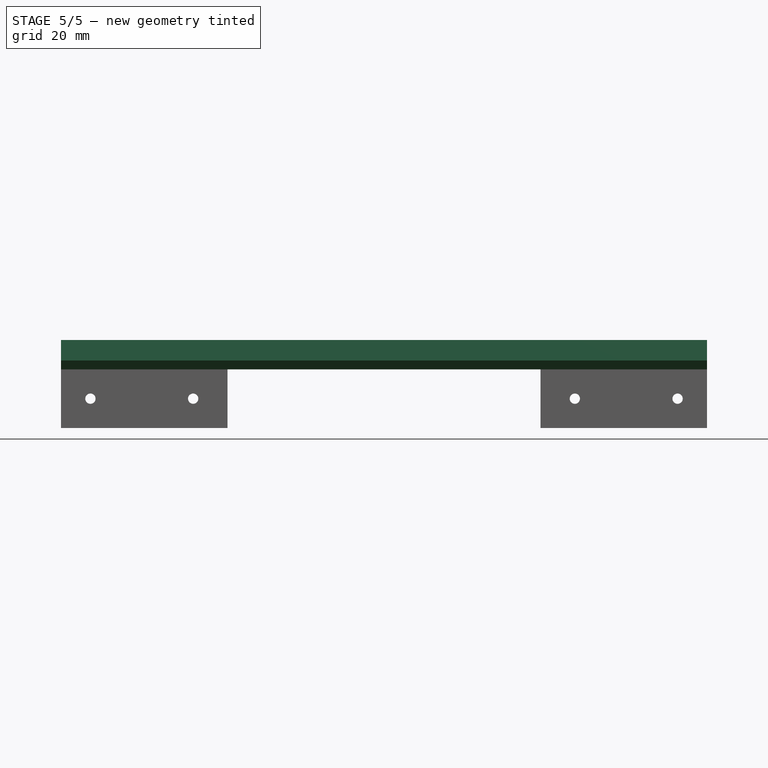
[diagram: stage 5 of 5 — front view after this stage's code; geometry added in this stage tinted green]
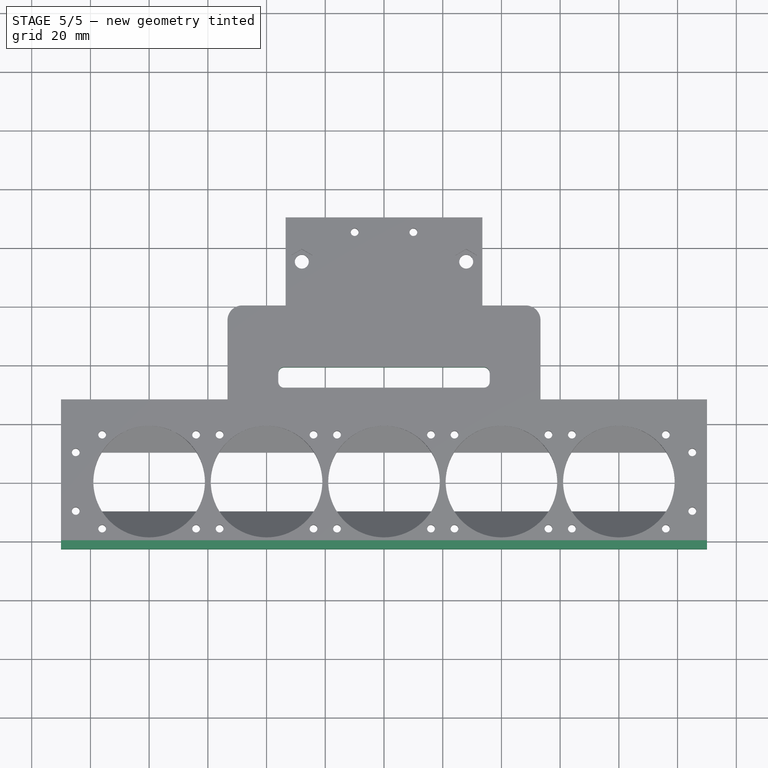
[diagram: stage 5 of 5 — top view after this stage's code; geometry added in this stage tinted green]
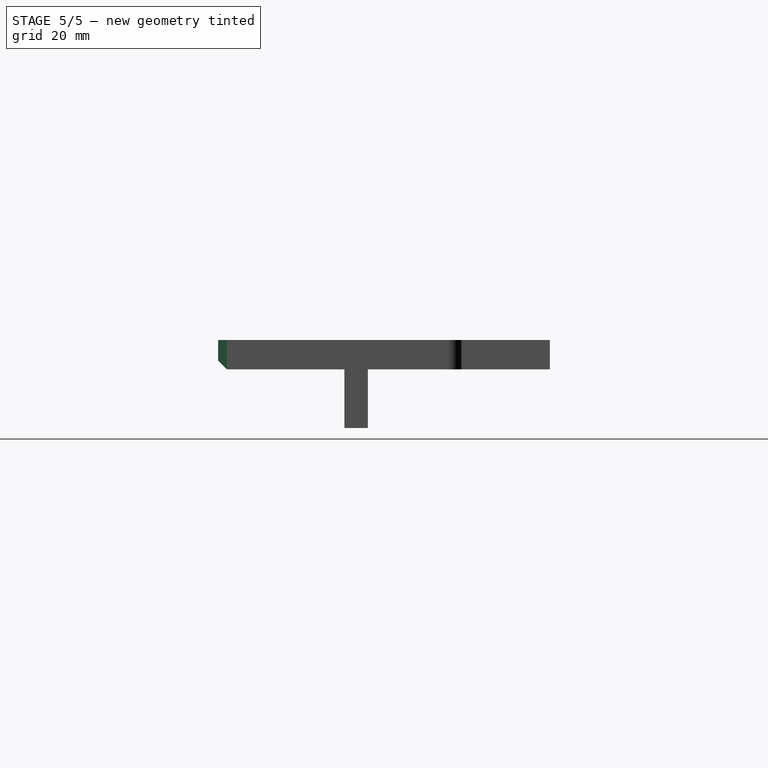
[diagram: stage 5 of 5 — right view after this stage's code; geometry added in this stage tinted green]
FEATURE [Sketcher::SketchObject] Sketch015
  ExternalGeometry = -> [Pocket008]
  MapMode = 5
  Placement = pos=(0,2.2e-15,10) rot=(0,0,1;0rad)
  Support = -> [Pocket008]
  sketch-geometry (4):
    g0: LineSegment StartX=-36 StartY=39 StartZ=0 EndX=36 EndY=39 EndZ=0
    g1: LineSegment StartX=36 StartY=39 StartZ=0 EndX=36 EndY=32 EndZ=0
    g2: LineSegment StartX=36 StartY=32 StartZ=0 EndX=-36 EndY=32 EndZ=0
    g3: LineSegment StartX=-36 StartY=32 StartZ=0 EndX=-36 EndY=39 EndZ=0
  constraints (12):
    c: Coincident(g0,g1)
    c: Coincident(g1,g2)
    c: Coincident(g2,g3)
    c: Coincident(g3,g0)
    c: Horizontal(g0)
    c: Horizontal(g2)
    c: Vertical(g1)
    c: Vertical(g3)
    c: DistanceX(g0,g0) = 72
    c: DistanceX(g0,g-1) = 36
    c: DistanceY(g-3,g1) = 12
    c: DistanceY(g1,g1) = 7
FEATURE [PartDesign::Pocket] Pocket009
  BaseFeature = -> Pocket008
  Length = 10
  Length2 = 100
  Profile = -> Sketch015
  Type = 0
FEATURE [PartDesign::Fillet] Fillet001
  Base = -> Pocket009 [Edge84,Edge83,Edge88,Edge86]
  BaseFeature = -> Pocket009
  Radius = 2
FEATURE [Sketcher::SketchObject] Sketch016
  ExternalGeometry = -> [Fillet001]
  MapMode = 5
  Placement = pos=(0,-20,0) rot=(1,0,0;1.5708rad)
  Support = -> [Fillet001]
  sketch-geometry (4):
    g0: LineSegment StartX=-110 StartY=10 StartZ=0 EndX=110 EndY=10 EndZ=0
    g1: LineSegment StartX=110 StartY=10 StartZ=0 EndX=110 EndY=0 EndZ=0
    g2: LineSegment StartX=110 StartY=0 StartZ=0 EndX=-110 EndY=0 EndZ=0
    g3: LineSegment StartX=-110 StartY=0 StartZ=0 EndX=-110 EndY=10 EndZ=0
  constraints (11):
    c: Coincident(g0,g1)
    c: Coincident(g1,g2)
    c: Coincident(g2,g3)
    c: Coincident(g3,g0)
    c: Horizontal(g0)
    c: Horizontal(g2)
    c: Vertical(g1)
    c: Vertical(g3)
    c: Coincident(g0,g-6)
    c: DistanceY(g-5,g2) = 0
    c: DistanceX(g1,g-4) = 0
FEATURE [PartDesign::Pad] Pad006
  BaseFeature = -> Fillet001
  Length = 3
  Length2 = 100
  Profile = -> Sketch016
  Type = 0
FEATURE [PartDesign::Chamfer] Chamfer
  Base = -> Pad006 [Edge325]
  BaseFeature = -> Pad006
  Size = 2.99
FEATURE [PartDesign::Body] Body
  Group = -> [Sketch,Pad,Sketch001,Pocket,Sketch002,Pad001,Sketch003,Pad002,Sketch004,Pocket001,Sketch005,Pocket002,Sketch006,Pad003,Sketch007,Pocket003,Sketch008,Pad004,Sketch009,Pad005,Sketch010,Pocket004,Sketch011,Pocket005,Fillet,Sketch012,Pocket006,Sketch013,Pocket007,Sketch014,Pocket008,Sketch015,Pocket009,Fillet001,Sketch016,Pad006,Chamfer]
  Origin = -> Origin
  Tip = -> Chamfer
FEATURE [App::MeasureDistance] Distance  label="Distance: 106.60 mm"
  Distance = 106.6
  P1 = (-53.3,28,-20)
  P2 = (53.3,28,-20)
FEATURE [App::MeasureDistance] Distance001  label="Distance: 39.88 mm"
  Distance = 39.8849
  P1 = (-33.5,60,-2.5e-14)
  P2 = (-33.4413,20.1151,7.1e-15)
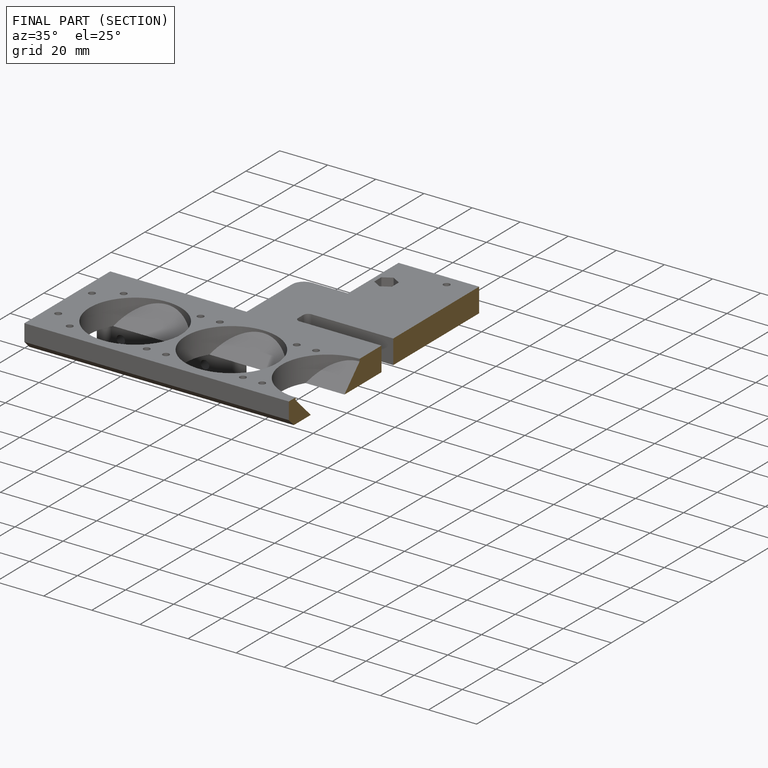
[diagram: finished part — half-section view (interior)]
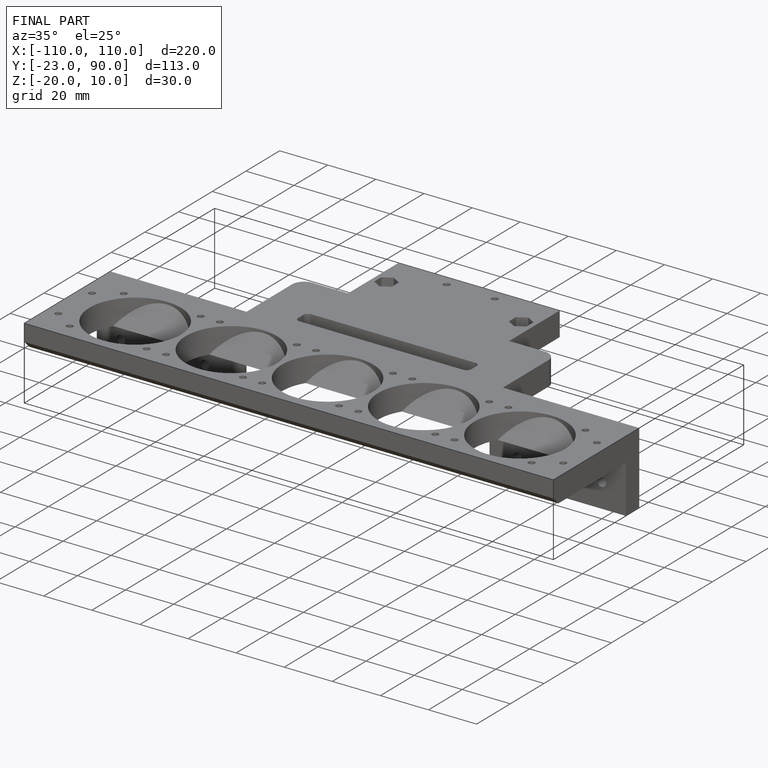
[diagram: finished part — iso view with bounding-box wireframe]
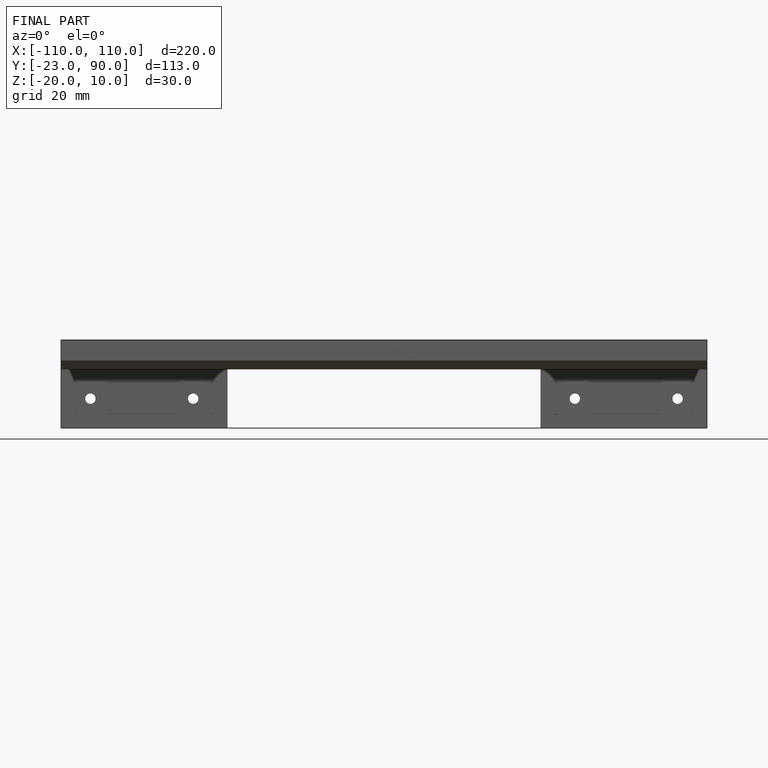
[diagram: finished part — front view with bounding-box wireframe]
